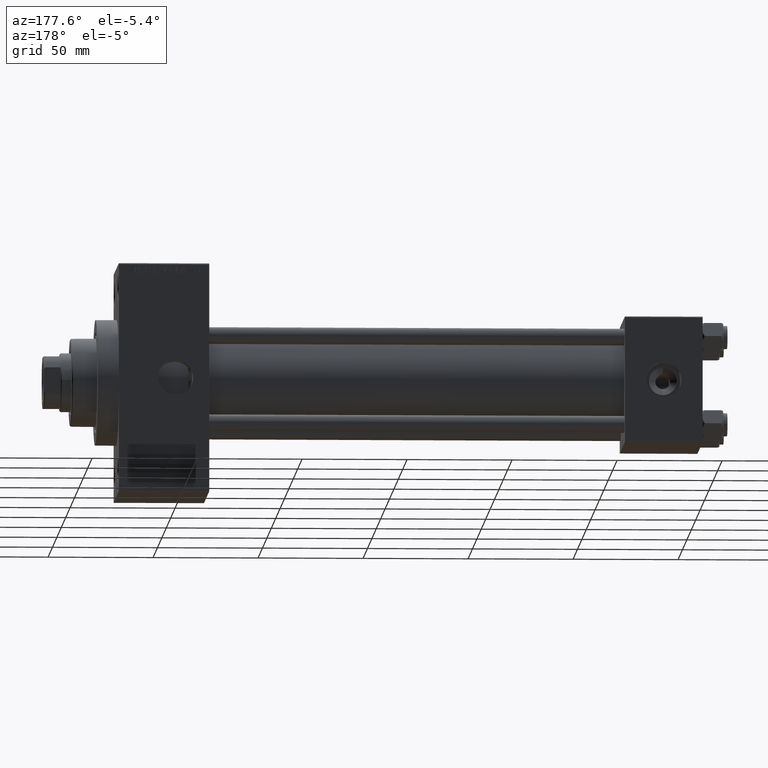
[diagram: clean part render]
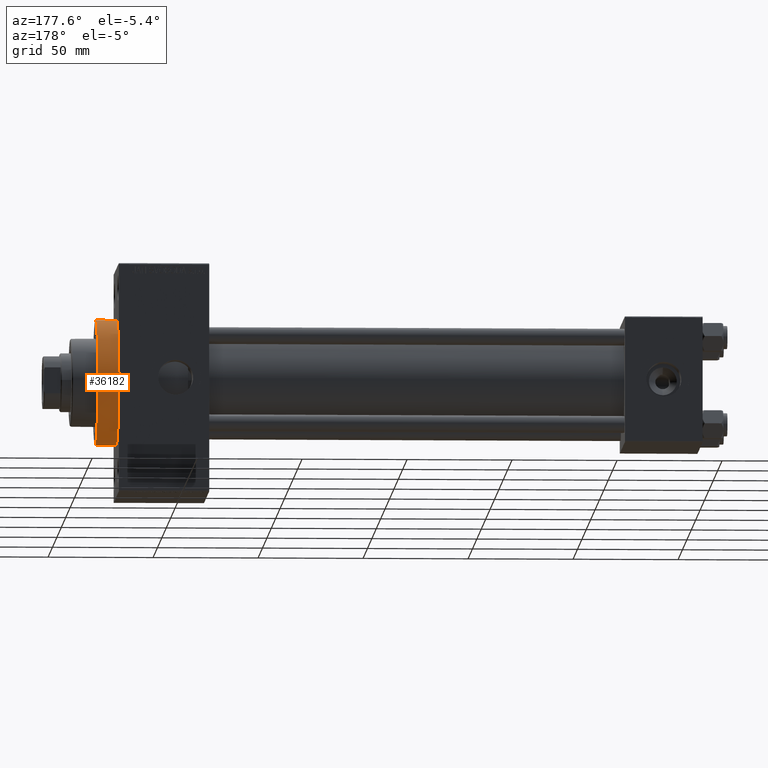
[diagram: same view with one face highlighted and labeled with its STEP entity id]
A machine part, auxiliary view. The second image highlights one B-rep face of the part: STEP entity #36182.
In plain terms, the highlighted cylindrical surface (partial cylindrical patch) has radius 30 mm, axis along (-1, -0, -0).
Its self-contained STEP definition (entity closure, byte-faithful):
#313 = EDGE_LOOP ( 'NONE', ( #2158, #28293, #20487, #10516, #35723 ) ) ;
#1500 = DIRECTION ( 'NONE',  ( -1.000000000000000000, -0.000000000000000000, -0.000000000000000000 ) ) ;
#2044 = DIRECTION ( 'NONE',  ( 1.000000000000000000, 0.000000000000000000, 0.000000000000000000 ) ) ;
#2158 = ORIENTED_EDGE ( 'NONE', *, *, #27448, .F. ) ;
#3153 = DIRECTION ( 'NONE',  ( 1.000000000000000000, 0.000000000000000000, 0.000000000000000000 ) ) ;
#3733 = CARTESIAN_POINT ( 'NONE',  ( 278.0000000000000000, 0.000000000000000000, 30.00000000000000000 ) ) ;
#5580 = CARTESIAN_POINT ( 'NONE',  ( 288.0000000000000568, 3.673940397442059178E-15, -30.00000000000000000 ) ) ;
#5999 = CARTESIAN_POINT ( 'NONE',  ( 288.0000000000000568, 0.000000000000000000, 30.00000000000000000 ) ) ;
#6017 = CARTESIAN_POINT ( 'NONE',  ( 288.0000000000000568, 0.000000000000000000, 30.00000000000000000 ) ) ;
#7359 = DIRECTION ( 'NONE',  ( 0.000000000000000000, 0.000000000000000000, -1.000000000000000000 ) ) ;
#7460 = DIRECTION ( 'NONE',  ( 0.000000000000000000, 0.000000000000000000, -1.000000000000000000 ) ) ;
#9582 = DIRECTION ( 'NONE',  ( -1.000000000000000000, -0.000000000000000000, -0.000000000000000000 ) ) ;
#9826 = DIRECTION ( 'NONE',  ( 0.000000000000000000, 0.000000000000000000, 1.000000000000000000 ) ) ;
#10516 = ORIENTED_EDGE ( 'NONE', *, *, #10622, .T. ) ;
#10622 = EDGE_CURVE ( 'NONE', #38254, #23071, #42334, .T. ) ;
#11209 = VERTEX_POINT ( 'NONE', #6017 ) ;
#12705 = CYLINDRICAL_SURFACE ( 'NONE', #33450, 30.00000000000000000 ) ;
#12746 = AXIS2_PLACEMENT_3D ( 'NONE', #44363, #47268, #7359 ) ;
#13516 = LINE ( 'NONE', #5580, #35708 ) ;
#20081 = VERTEX_POINT ( 'NONE', #27253 ) ;
#20234 = CARTESIAN_POINT ( 'NONE',  ( 278.0000000000000000, 30.00000000000000000, 0.000000000000000000 ) ) ;
#20406 = CIRCLE ( 'NONE', #12746, 30.00000000000000000 ) ;
#20487 = ORIENTED_EDGE ( 'NONE', *, *, #45699, .T. ) ;
#20674 = DIRECTION ( 'NONE',  ( -1.000000000000000000, -0.000000000000000000, -0.000000000000000000 ) ) ;
#22320 = CARTESIAN_POINT ( 'NONE',  ( 288.0000000000000568, 3.673940397442059178E-15, -30.00000000000000000 ) ) ;
#23071 = VERTEX_POINT ( 'NONE', #3733 ) ;
#24006 = FACE_OUTER_BOUND ( 'NONE', #313, .T. ) ;
#24277 = LINE ( 'NONE', #5999, #31856 ) ;
#24716 = CARTESIAN_POINT ( 'NONE',  ( 288.0000000000000568, 0.000000000000000000, 0.000000000000000000 ) ) ;
#25448 = EDGE_CURVE ( 'NONE', #27210, #20081, #13516, .T. ) ;
#25864 = EDGE_CURVE ( 'NONE', #11209, #23071, #24277, .T. ) ;
#27210 = VERTEX_POINT ( 'NONE', #22320 ) ;
#27253 = CARTESIAN_POINT ( 'NONE',  ( 278.0000000000000000, 3.673940397442059178E-15, -30.00000000000000000 ) ) ;
#27298 = DIRECTION ( 'NONE',  ( 0.000000000000000000, 0.000000000000000000, -1.000000000000000000 ) ) ;
#27448 = EDGE_CURVE ( 'NONE', #27210, #11209, #20406, .T. ) ;
#28293 = ORIENTED_EDGE ( 'NONE', *, *, #25448, .T. ) ;
#28294 = CIRCLE ( 'NONE', #42870, 30.00000000000000000 ) ;
#31843 = CARTESIAN_POINT ( 'NONE',  ( 278.0000000000000000, 0.000000000000000000, 0.000000000000000000 ) ) ;
#31856 = VECTOR ( 'NONE', #20674, 1000.000000000000000 ) ;
#33450 = AXIS2_PLACEMENT_3D ( 'NONE', #24716, #9582, #9826 ) ;
#35708 = VECTOR ( 'NONE', #1500, 1000.000000000000000 ) ;
#35723 = ORIENTED_EDGE ( 'NONE', *, *, #25864, .F. ) ;
#36182 = ADVANCED_FACE ( 'NONE', ( #24006 ), #12705, .T. ) ;
#38254 = VERTEX_POINT ( 'NONE', #20234 ) ;
#42334 = CIRCLE ( 'NONE', #44521, 30.00000000000000000 ) ;
#42870 = AXIS2_PLACEMENT_3D ( 'NONE', #46660, #3153, #7460 ) ;
#44363 = CARTESIAN_POINT ( 'NONE',  ( 288.0000000000000568, 0.000000000000000000, 0.000000000000000000 ) ) ;
#44521 = AXIS2_PLACEMENT_3D ( 'NONE', #31843, #2044, #27298 ) ;
#45699 = EDGE_CURVE ( 'NONE', #20081, #38254, #28294, .T. ) ;
#46660 = CARTESIAN_POINT ( 'NONE',  ( 278.0000000000000000, 0.000000000000000000, 0.000000000000000000 ) ) ;
#47268 = DIRECTION ( 'NONE',  ( 1.000000000000000000, 0.000000000000000000, 0.000000000000000000 ) ) ;